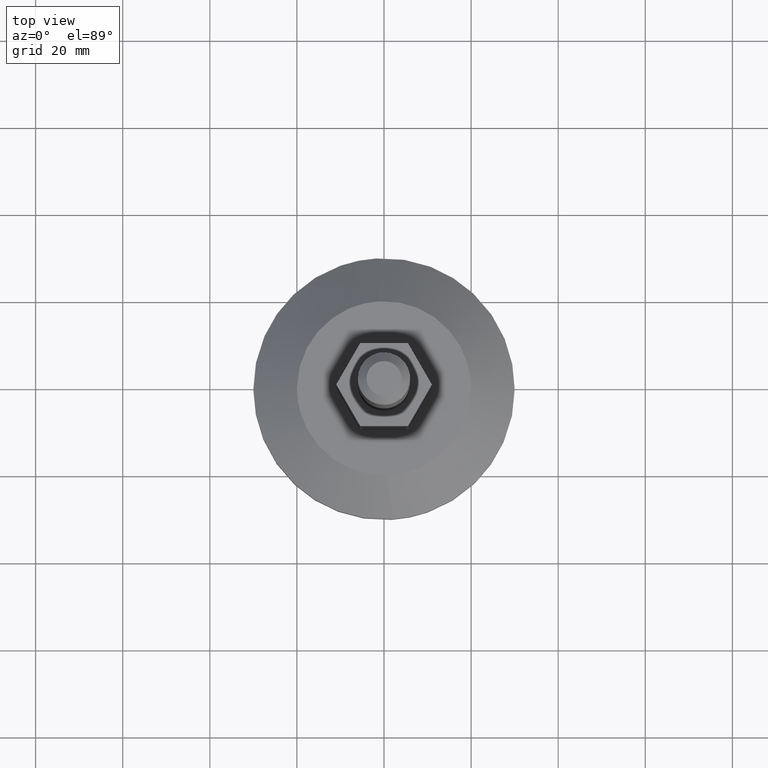
[diagram: clean part render]
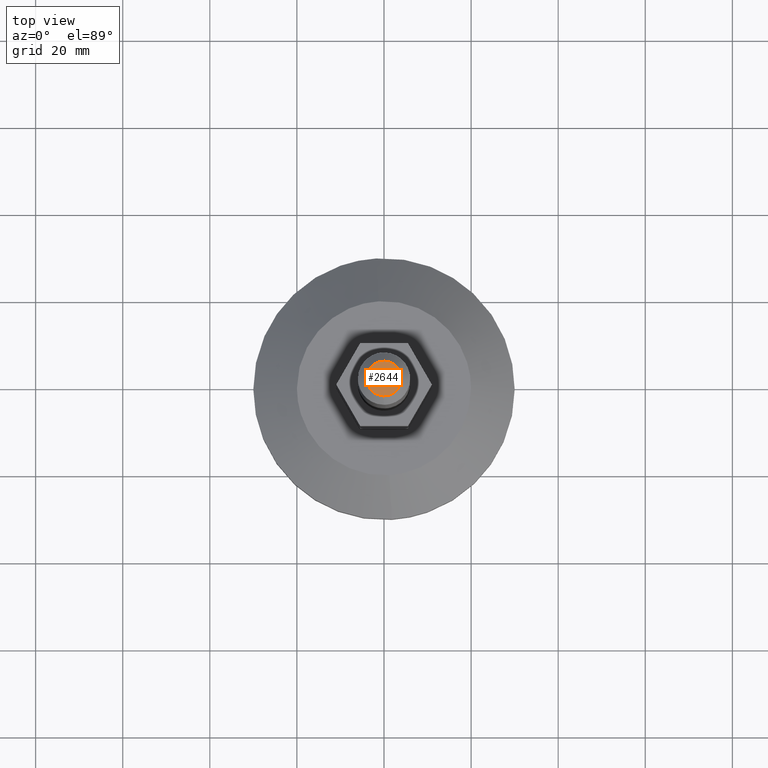
[diagram: same view with one face highlighted and labeled with its STEP entity id]
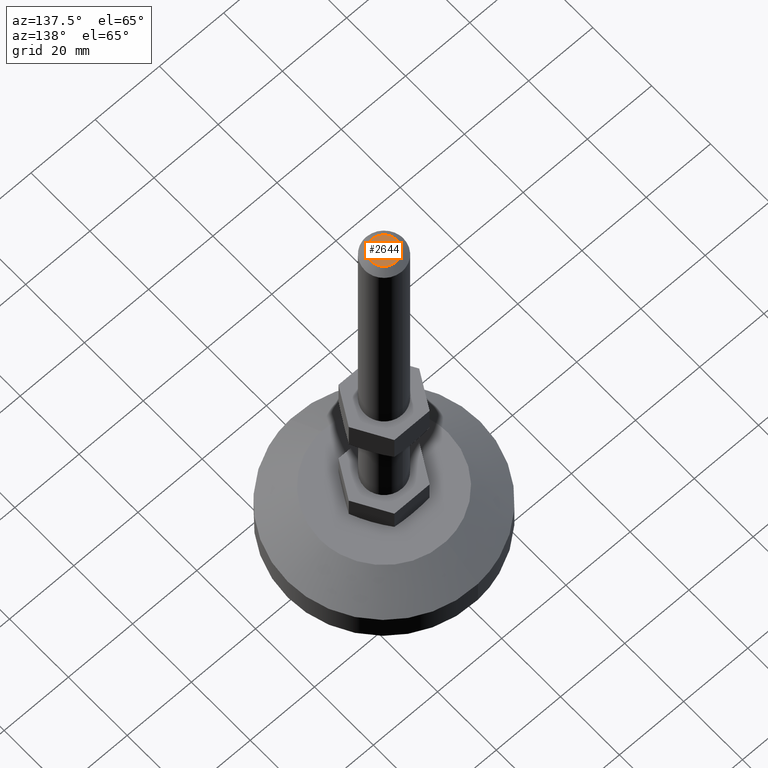
[diagram: same view with one face highlighted and labeled with its STEP entity id]
A machine part, top view. The second image highlights one B-rep face of the part: STEP entity #2644.
A second angle (auxiliary view) of the same face is appended — the face is thin or edge-on in the first view.
In plain terms, the highlighted face is a freeform B-spline surface patch.
Its self-contained STEP definition (entity closure, byte-faithful):
#2573=CARTESIAN_POINT('',(-4.399599984494448,4.399432468971607,145.0));
#2574=CARTESIAN_POINT('',(4.399600199071169,4.399432468971606,145.0));
#2575=CARTESIAN_POINT('',(-4.399599984494448,-4.399432182869313,145.0));
#2576=CARTESIAN_POINT('',(4.399600199071169,-4.399432182869312,145.0));
#2577=B_SPLINE_SURFACE_WITH_KNOTS('',1,1,((#2573,#2575),(#2574,#2576)),.UNSPECIFIED.,.F.,.F.,.U.,(2,2),(2,2),(0.0,8.799200183565617),(0.0,8.798864651840919),.UNSPECIFIED.);
#2578=CARTESIAN_POINT('',(-4.0,0.0,145.0));
#2579=VERTEX_POINT('',#2578);
#2580=CARTESIAN_POINT('',(-0.034906143784716,-3.999847692484243,144.999999999756800));
#2581=VERTEX_POINT('',#2580);
#2582=CARTESIAN_POINT('',(-4.0,0.0,145.0));
#2583=CARTESIAN_POINT('',(-4.000000000001061,-3.965244840727810,144.999999999878440));
#2584=CARTESIAN_POINT('',(-0.034906143784716,-3.999847692484243,144.999999999756850));
#2592=(BOUNDED_CURVE()B_SPLINE_CURVE(2,(#2582,#2583,#2584),.UNSPECIFIED.,.F.,.U.)B_SPLINE_CURVE_WITH_KNOTS((3,3),(0.0,0.248460105586226),.UNSPECIFIED.)CURVE()GEOMETRIC_REPRESENTATION_ITEM()RATIONAL_B_SPLINE_CURVE((1.0,0.708910879712480,0.996414027918070))REPRESENTATION_ITEM(''));
#2593=EDGE_CURVE('',#2579,#2581,#2592,.T.);
#2594=ORIENTED_EDGE('',*,*,#2593,.T.);
#2595=CARTESIAN_POINT('',(4.0,0.0,145.0));
#2596=VERTEX_POINT('',#2595);
#2597=CARTESIAN_POINT('',(-0.034906143784716,-3.999847692484243,144.999999999756850));
#2598=CARTESIAN_POINT('',(-0.017453404179524,-4.000000000242645,144.999999999757340));
#2599=CARTESIAN_POINT('',(-2.112405E-012,-4.000000000242115,144.999999999757900));
#2600=CARTESIAN_POINT('',(3.999999999998949,-4.000000000120529,144.999999999879520));
#2601=CARTESIAN_POINT('',(4.0,0.0,145.0));
#2609=(BOUNDED_CURVE()B_SPLINE_CURVE(2,(#2597,#2598,#2599,#2600,#2601),.UNSPECIFIED.,.F.,.U.)B_SPLINE_CURVE_WITH_KNOTS((3,2,3),(0.248460105586226,0.250000000000000,0.500000000000000),.UNSPECIFIED.)CURVE()GEOMETRIC_REPRESENTATION_ITEM()RATIONAL_B_SPLINE_CURVE((0.996414027918070,0.998195901474067,1.0,0.707106781186548,1.0))REPRESENTATION_ITEM(''));
#2610=EDGE_CURVE('',#2581,#2596,#2609,.T.);
#2611=ORIENTED_EDGE('',*,*,#2610,.T.);
#2612=CARTESIAN_POINT('',(0.034906143784717,3.999847692484232,144.999999999756800));
#2613=VERTEX_POINT('',#2612);
#2614=CARTESIAN_POINT('',(4.0,0.0,145.0));
#2615=CARTESIAN_POINT('',(4.000000000001061,3.965244840727805,144.999999999878440));
#2616=CARTESIAN_POINT('',(0.034906143784717,3.999847692484232,144.999999999756850));
#2624=(BOUNDED_CURVE()B_SPLINE_CURVE(2,(#2614,#2615,#2616),.UNSPECIFIED.,.F.,.U.)B_SPLINE_CURVE_WITH_KNOTS((3,3),(0.500000000000000,0.748460105586226),.UNSPECIFIED.)CURVE()GEOMETRIC_REPRESENTATION_ITEM()RATIONAL_B_SPLINE_CURVE((1.0,0.708910879712480,0.996414027918070))REPRESENTATION_ITEM(''));
#2625=EDGE_CURVE('',#2596,#2613,#2624,.T.);
#2626=ORIENTED_EDGE('',*,*,#2625,.T.);
#2627=CARTESIAN_POINT('',(0.034906143784717,3.999847692484232,144.999999999756850));
#2628=CARTESIAN_POINT('',(0.017453404179524,4.000000000242634,144.999999999757340));
#2629=CARTESIAN_POINT('',(2.112751E-012,4.000000000242103,144.999999999757900));
#2630=CARTESIAN_POINT('',(-3.999999999998948,4.000000000120523,144.999999999879520));
#2631=CARTESIAN_POINT('',(-4.0,0.0,145.0));
#2639=(BOUNDED_CURVE()B_SPLINE_CURVE(2,(#2627,#2628,#2629,#2630,#2631),.UNSPECIFIED.,.F.,.U.)B_SPLINE_CURVE_WITH_KNOTS((3,2,3),(0.748460105586226,0.750000000000000,1.0),.UNSPECIFIED.)CURVE()GEOMETRIC_REPRESENTATION_ITEM()RATIONAL_B_SPLINE_CURVE((0.996414027918070,0.998195901474067,1.0,0.707106781186548,1.0))REPRESENTATION_ITEM(''));
#2640=EDGE_CURVE('',#2613,#2579,#2639,.T.);
#2641=ORIENTED_EDGE('',*,*,#2640,.T.);
#2642=EDGE_LOOP('',(#2594,#2611,#2626,#2641));
#2643=FACE_OUTER_BOUND('',#2642,.T.);
#2644=ADVANCED_FACE('',(#2643),#2577,.F.);